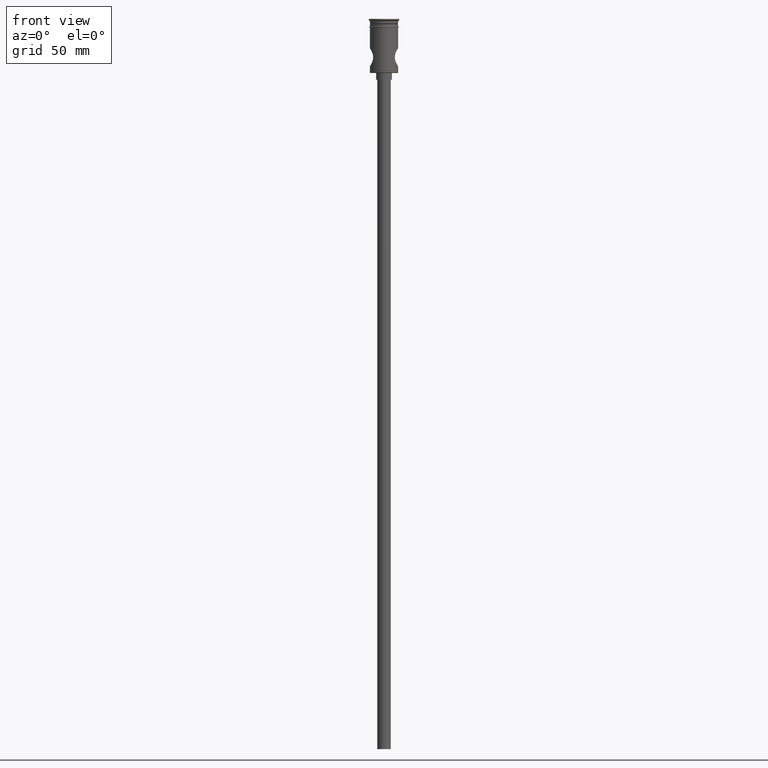
[diagram: clean part render]
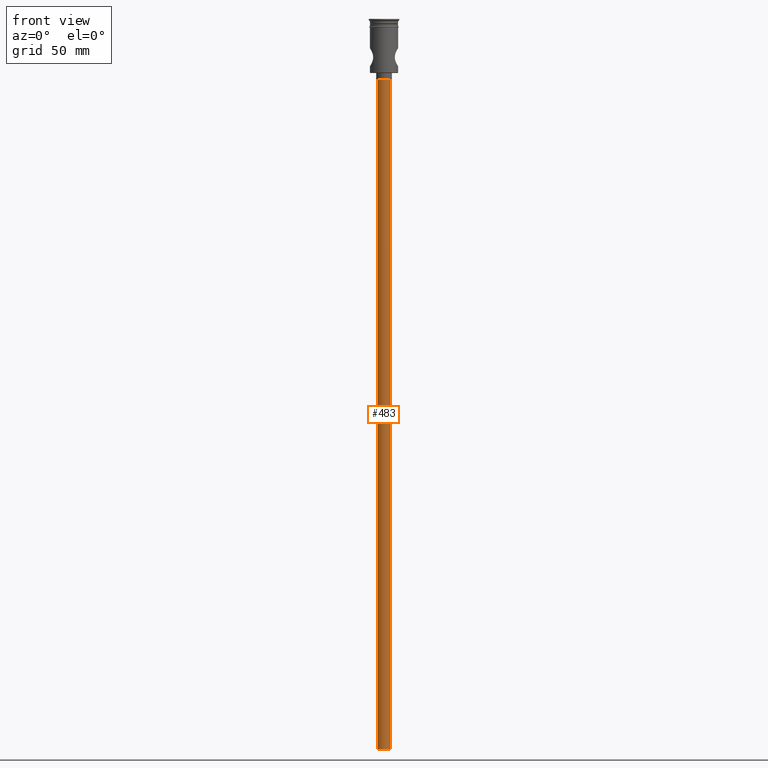
[diagram: same view with one face highlighted and labeled with its STEP entity id]
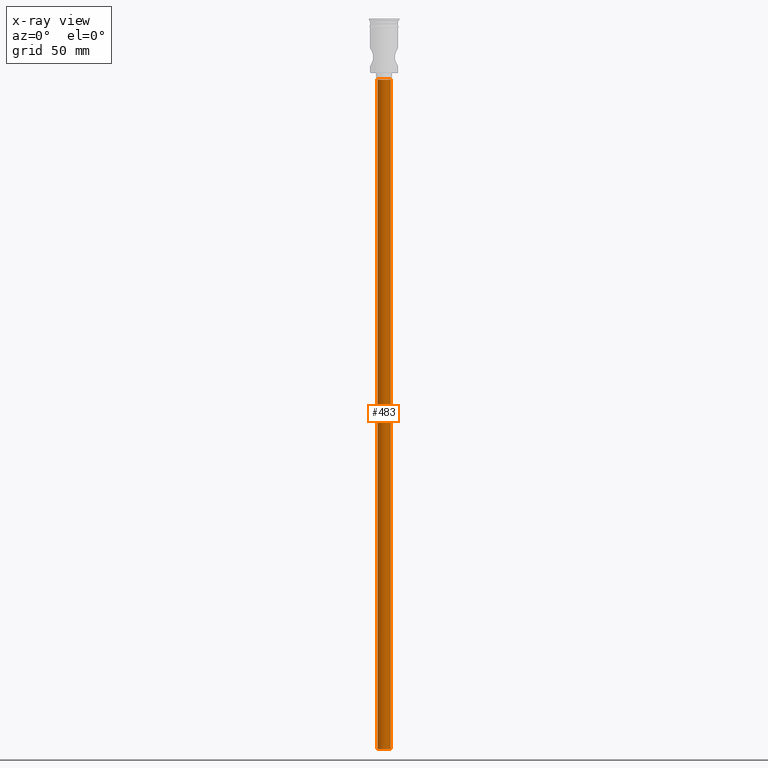
[diagram: x-ray of the same camera — body ghosted, the highlighted face saturated]
A machine part, front view. The second image highlights one B-rep face of the part: STEP entity #483.
The next image is the same camera in x-ray: the body ghosted, the highlighted face saturated — about 0% of this face is hidden behind the body in this view.
In plain terms, the highlighted cylindrical surface (edge-blend (fillet) strip) has radius 3 mm, axis along (-0, -0, 1).
Its self-contained STEP definition (entity closure, byte-faithful):
#88 = DIRECTION ( 'NONE',  ( 0.000000000000000000, 0.000000000000000000, -1.000000000000000000 ) ) ;
#131 = ORIENTED_EDGE ( 'NONE', *, *, #434, .T. ) ;
#174 = CARTESIAN_POINT ( 'NONE',  ( 0.000000000000000000, 0.000000000000000000, -324.0000000000000000 ) ) ;
#182 = AXIS2_PLACEMENT_3D ( 'NONE', #996, #432, #1244 ) ;
#191 = VERTEX_POINT ( 'NONE', #264 ) ;
#205 = CARTESIAN_POINT ( 'NONE',  ( 0.000000000000000000, 0.000000000000000000, -27.00000000000000000 ) ) ;
#216 = VERTEX_POINT ( 'NONE', #262 ) ;
#229 = DIRECTION ( 'NONE',  ( -1.000000000000000000, 0.000000000000000000, 0.000000000000000000 ) ) ;
#262 = CARTESIAN_POINT ( 'NONE',  ( -3.000000000000000444, 3.673940397442060361E-16, -324.0000000000000000 ) ) ;
#264 = CARTESIAN_POINT ( 'NONE',  ( -3.000000000000000444, 3.673940397442060361E-16, -27.00000000000000000 ) ) ;
#283 = EDGE_CURVE ( 'NONE', #425, #216, #1037, .T. ) ;
#335 = ORIENTED_EDGE ( 'NONE', *, *, #1101, .T. ) ;
#384 = DIRECTION ( 'NONE',  ( -0.000000000000000000, -0.000000000000000000, 1.000000000000000000 ) ) ;
#425 = VERTEX_POINT ( 'NONE', #1105 ) ;
#432 = DIRECTION ( 'NONE',  ( -0.000000000000000000, -0.000000000000000000, 1.000000000000000000 ) ) ;
#434 = EDGE_CURVE ( 'NONE', #478, #191, #808, .T. ) ;
#455 = ORIENTED_EDGE ( 'NONE', *, *, #1028, .F. ) ;
#478 = VERTEX_POINT ( 'NONE', #766 ) ;
#483 = ADVANCED_FACE ( 'NONE', ( #1013 ), #784, .T. ) ;
#620 = DIRECTION ( 'NONE',  ( 0.000000000000000000, 0.000000000000000000, -1.000000000000000000 ) ) ;
#705 = AXIS2_PLACEMENT_3D ( 'NONE', #174, #620, #1326 ) ;
#759 = ORIENTED_EDGE ( 'NONE', *, *, #283, .F. ) ;
#766 = CARTESIAN_POINT ( 'NONE',  ( 3.000000000000000444, 0.000000000000000000, -27.00000000000000000 ) ) ;
#784 = CYLINDRICAL_SURFACE ( 'NONE', #182, 3.000000000000000444 ) ;
#808 = CIRCLE ( 'NONE', #1382, 3.000000000000000444 ) ;
#856 = DIRECTION ( 'NONE',  ( -0.000000000000000000, -0.000000000000000000, 1.000000000000000000 ) ) ;
#927 = VECTOR ( 'NONE', #384, 1000.000000000000000 ) ;
#982 = EDGE_LOOP ( 'NONE', ( #455, #759, #335, #131 ) ) ;
#996 = CARTESIAN_POINT ( 'NONE',  ( 0.000000000000000000, 0.000000000000000000, -324.0000000000000000 ) ) ;
#1013 = FACE_OUTER_BOUND ( 'NONE', #982, .T. ) ;
#1028 = EDGE_CURVE ( 'NONE', #216, #191, #1194, .T. ) ;
#1037 = CIRCLE ( 'NONE', #705, 3.000000000000000444 ) ;
#1089 = LINE ( 'NONE', #1416, #927 ) ;
#1101 = EDGE_CURVE ( 'NONE', #425, #478, #1089, .T. ) ;
#1105 = CARTESIAN_POINT ( 'NONE',  ( 3.000000000000000444, 0.000000000000000000, -324.0000000000000000 ) ) ;
#1194 = LINE ( 'NONE', #1307, #1408 ) ;
#1244 = DIRECTION ( 'NONE',  ( 1.000000000000000000, 0.000000000000000000, 0.000000000000000000 ) ) ;
#1307 = CARTESIAN_POINT ( 'NONE',  ( -3.000000000000000444, 3.673940397442060361E-16, -324.0000000000000000 ) ) ;
#1326 = DIRECTION ( 'NONE',  ( -1.000000000000000000, 0.000000000000000000, 0.000000000000000000 ) ) ;
#1382 = AXIS2_PLACEMENT_3D ( 'NONE', #205, #88, #229 ) ;
#1408 = VECTOR ( 'NONE', #856, 1000.000000000000000 ) ;
#1416 = CARTESIAN_POINT ( 'NONE',  ( 3.000000000000000444, 0.000000000000000000, -324.0000000000000000 ) ) ;